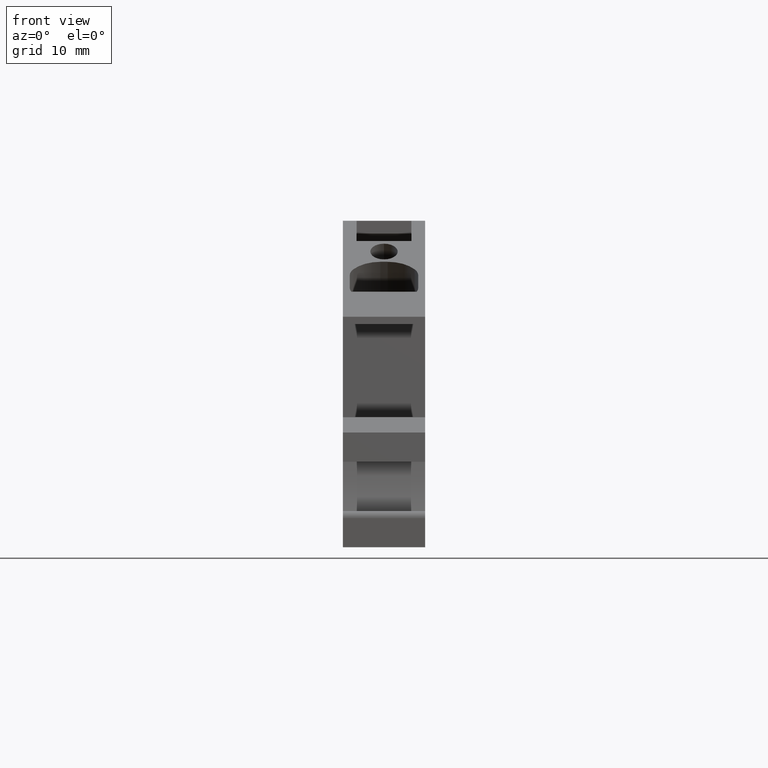
[diagram: clean part render]
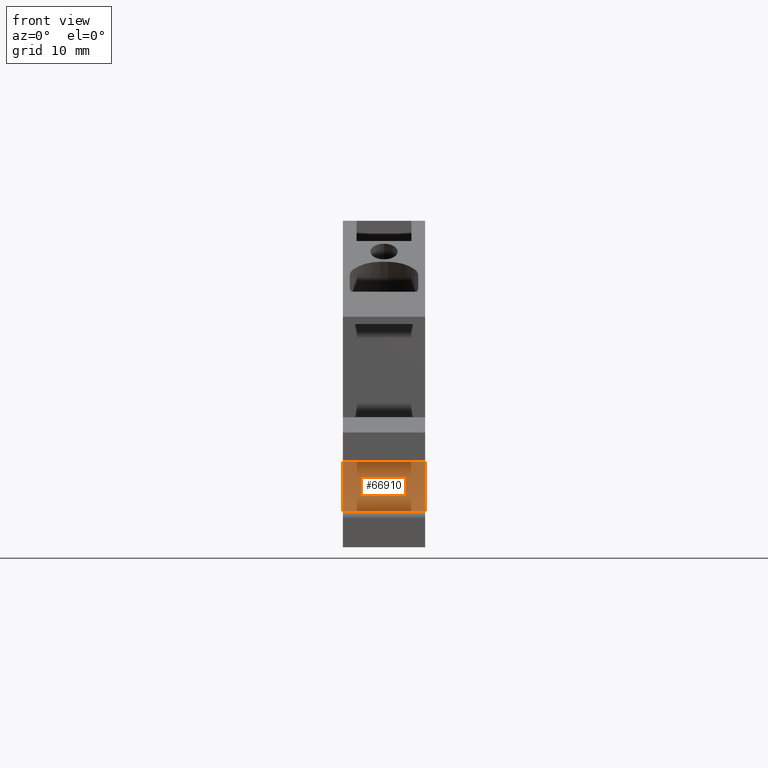
[diagram: same view with one face highlighted and labeled with its STEP entity id]
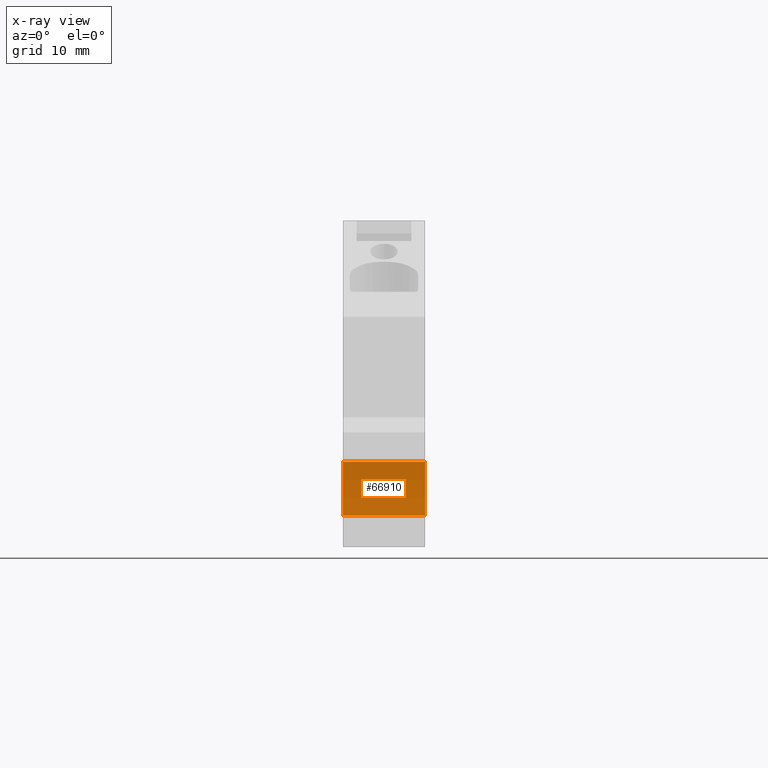
[diagram: x-ray of the same camera — body ghosted, the highlighted face saturated]
A machine part, front view. The second image highlights one B-rep face of the part: STEP entity #66910.
The next image is the same camera in x-ray: the body ghosted, the highlighted face saturated — about 0% of this face is hidden behind the body in this view.
In plain terms, the highlighted cylindrical surface (partial cylindrical patch) has radius 36.4216 mm, axis along (-1, -0, 0).
Its self-contained STEP definition (entity closure, byte-faithful):
#2130=CARTESIAN_POINT('',(2.29555040933066,-2.60243001371398,52.7));
#2140=VERTEX_POINT('',#2130);
#2170=CARTESIAN_POINT('',(-32.3049932514707,8.77026705724427,52.7));
#2180=DIRECTION('',(-8.51383783839635E-18,1.10420235744947E-16,-1.));
#2190=DIRECTION('',(-8.35389237013017E-9,-1.,-1.10420235673823E-16));
#2200=AXIS2_PLACEMENT_3D('',#2170,#2180,#2190);
#2210=CIRCLE('',#2200,36.4216400000165);
#2220=CARTESIAN_POINT('',(3.94644420618581,5.25328787840031,52.7));
#2230=VERTEX_POINT('',#2220);
#2240=EDGE_CURVE('',#2230,#2140,#2210,.T.);
#7990=CARTESIAN_POINT('',(3.94644420618581,5.25328787840031,40.7));
#8000=VERTEX_POINT('',#7990);
#8030=CARTESIAN_POINT('',(-32.3049932514707,8.77026705724427,40.7));
#8040=DIRECTION('',(-8.51383783839635E-18,1.10420235744947E-16,-1.));
#8050=DIRECTION('',(-8.35389237013017E-9,-1.,-1.10420235673823E-16));
#8060=AXIS2_PLACEMENT_3D('',#8030,#8040,#8050);
#8070=CIRCLE('',#8060,36.4216400000165);
#8080=CARTESIAN_POINT('',(2.29555040933133,-2.60243001371195,40.7));
#8090=VERTEX_POINT('',#8080);
#8100=EDGE_CURVE('',#8000,#8090,#8070,.T.);
#66190=CARTESIAN_POINT('',(3.94644420618582,5.25328787840031,40.7));
#66200=DIRECTION('',(-8.51383783839635E-18,1.10420235744947E-16,-1.));
#66210=VECTOR('',#66200,1.);
#66220=LINE('',#66190,#66210);
#66230=EDGE_CURVE('',#2230,#8000,#66220,.T.);
#66620=CARTESIAN_POINT('',(2.29555040673888,-2.60243001285985,40.7));
#66630=DIRECTION('',(8.51383783839635E-18,-1.10420235744947E-16,1.));
#66640=VECTOR('',#66630,1.);
#66650=LINE('',#66620,#66640);
#66660=EDGE_CURVE('',#8090,#2140,#66650,.T.);
#66800=CARTESIAN_POINT('',(-32.3049932514707,8.77026705724427,40.7));
#66810=DIRECTION('',(-8.51383783839635E-18,1.10420235744947E-16,-1.));
#66820=DIRECTION('',(-8.35389237013017E-9,-1.,-1.10420235673823E-16));
#66830=AXIS2_PLACEMENT_3D('',#66800,#66810,#66820);
#66840=CYLINDRICAL_SURFACE('',#66830,36.4216400000165);
#66850=ORIENTED_EDGE('',*,*,#66230,.T.);
#66860=ORIENTED_EDGE('',*,*,#2240,.F.);
#66870=ORIENTED_EDGE('',*,*,#66660,.T.);
#66880=ORIENTED_EDGE('',*,*,#8100,.T.);
#66890=EDGE_LOOP('',(#66880,#66870,#66860,#66850));
#66900=FACE_OUTER_BOUND('',#66890,.T.);
#66910=ADVANCED_FACE('',(#66900),#66840,.F.);